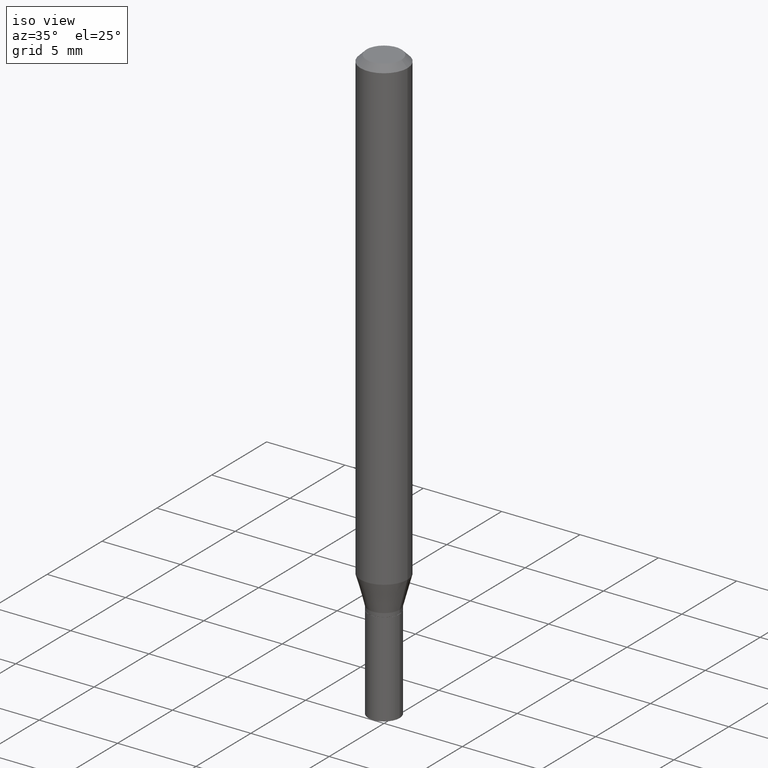
[diagram: clean part render]
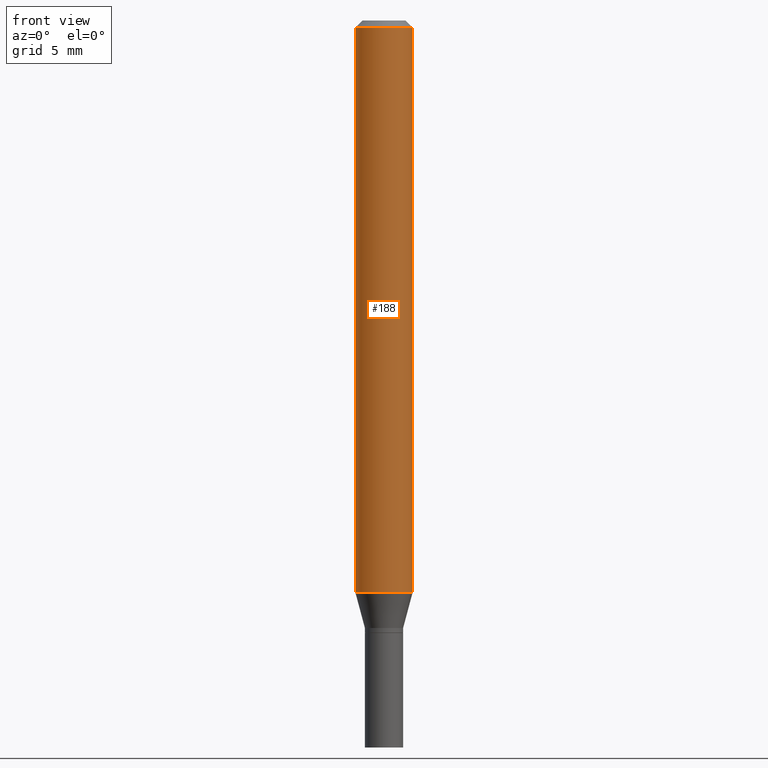
[diagram: tour spotlight — one face highlighted and labeled with its STEP entity id]
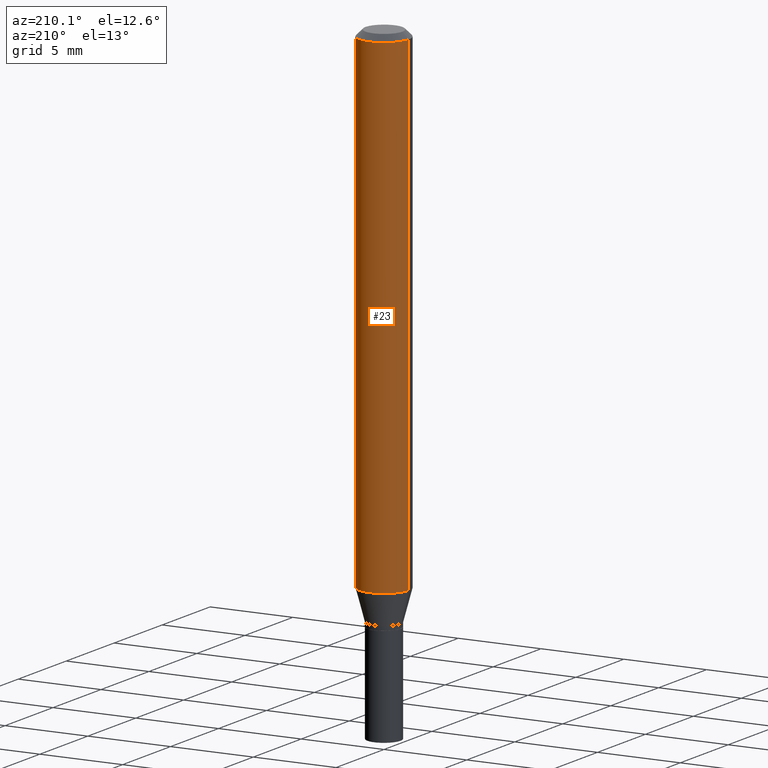
[diagram: tour spotlight — one face highlighted and labeled with its STEP entity id]
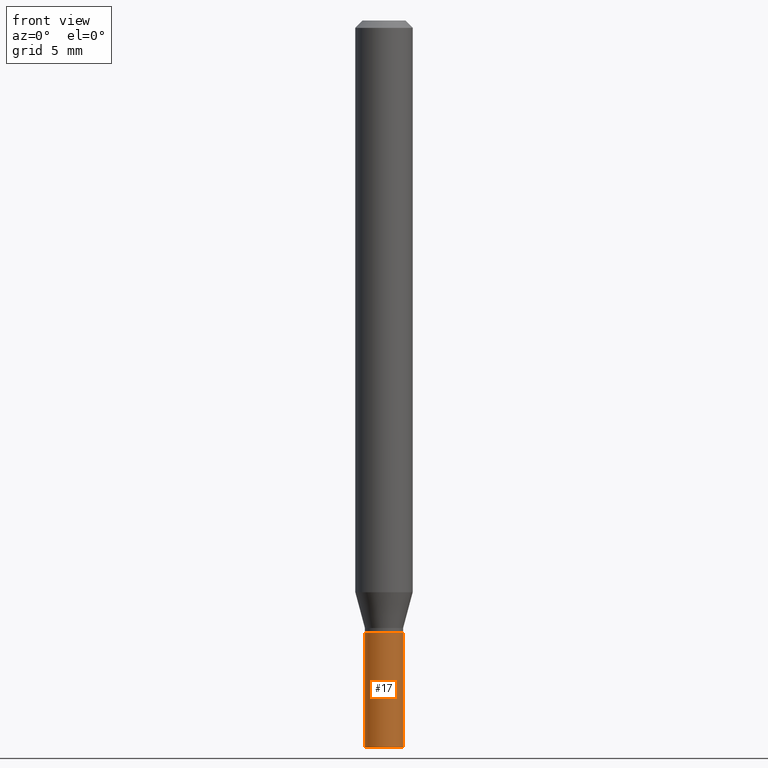
[diagram: tour spotlight — one face highlighted and labeled with its STEP entity id]
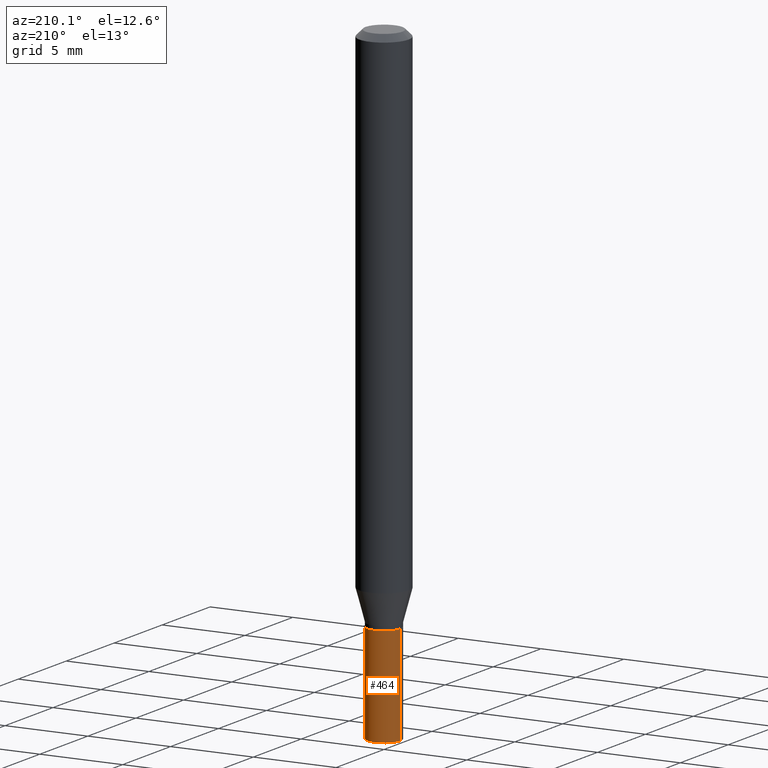
[diagram: tour spotlight — one face highlighted and labeled with its STEP entity id]
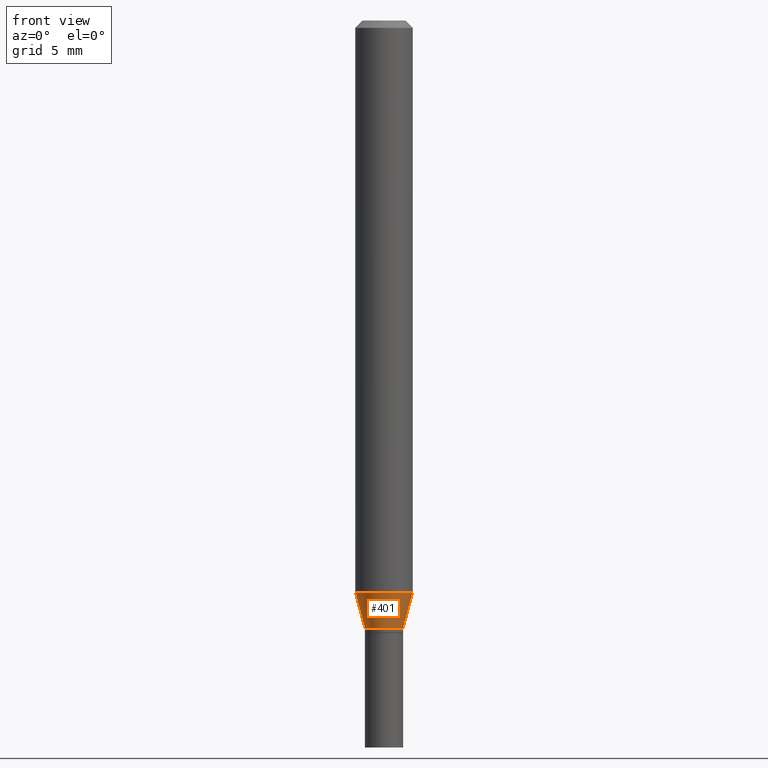
[diagram: tour spotlight — one face highlighted and labeled with its STEP entity id]
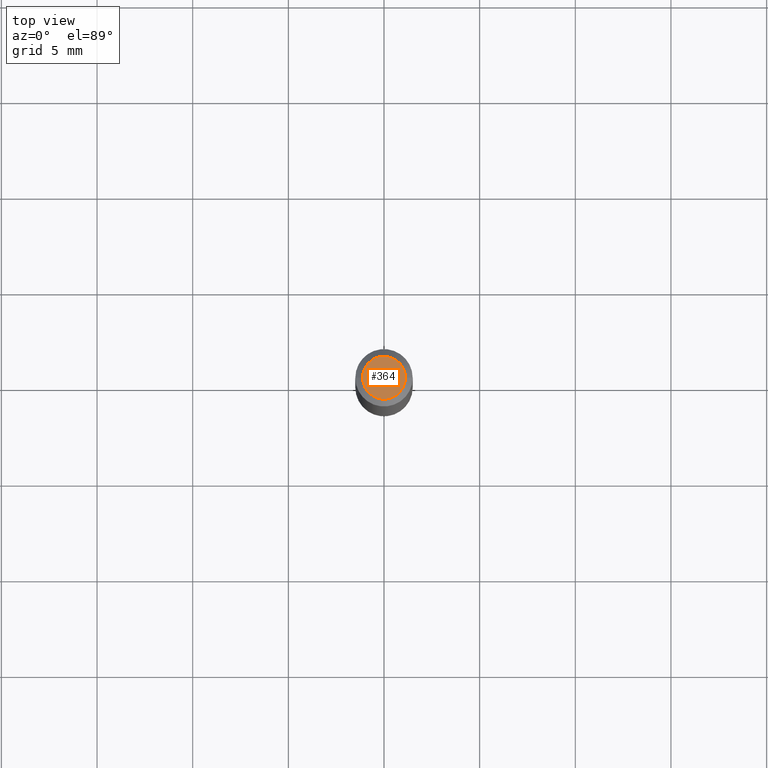
[diagram: tour spotlight — one face highlighted and labeled with its STEP entity id]
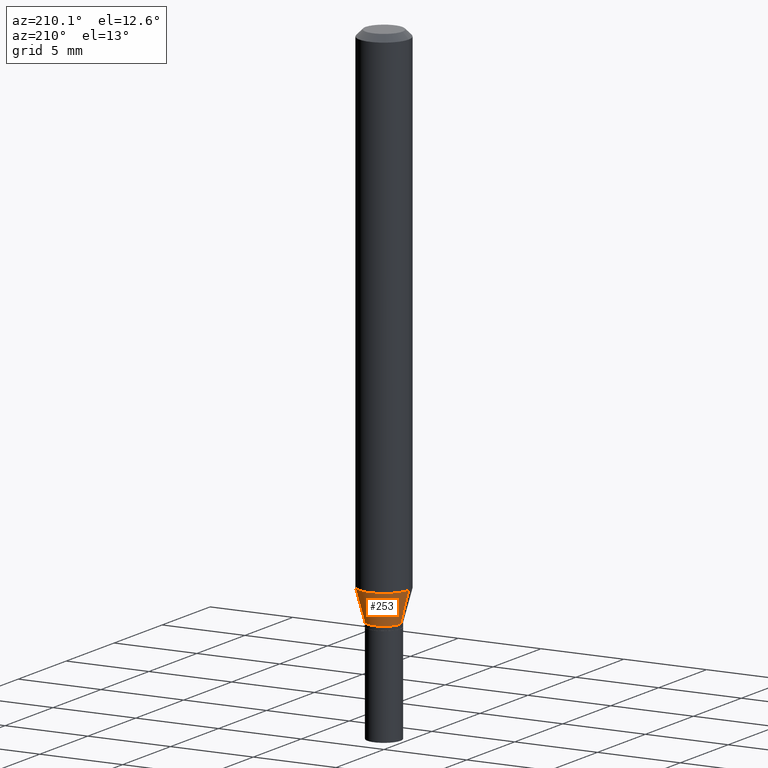
[diagram: tour spotlight — one face highlighted and labeled with its STEP entity id]
A machine part: a face-by-face anatomy tour. The part has 16 B-rep faces; the first image is the clean iso view, then the 7 largest visible faces are spotlighted one at a time (largest first), each with its STEP entity span.

Face 1 — front view, entity #188. In plain terms, the highlighted cylindrical surface (edge-blend (fillet) strip) has radius 1.4999 mm, axis along (-0, 0, 1).
Definition (entity closure, byte-faithful):
#5 = VERTEX_POINT ( 'NONE', #370 ) ;
#10 = CARTESIAN_POINT ( 'NONE',  ( 3.668203209277705088E-31, -5.237222008264718399E-17, -0.01499999999999999944 ) ) ;
#37 = AXIS2_PLACEMENT_3D ( 'NONE', #10, #251, #433 ) ;
#46 = AXIS2_PLACEMENT_3D ( 'NONE', #96, #90, #172 ) ;
#56 = ORIENTED_EDGE ( 'NONE', *, *, #171, .T. ) ;
#58 = CARTESIAN_POINT ( 'NONE',  ( 0.05904999999999999832, -4.647161662000212105E-16, -0.01499999999999999944 ) ) ;
#79 = CIRCLE ( 'NONE', #305, 0.05904999999999999832 ) ;
#90 = DIRECTION ( 'NONE',  ( -2.445468806185136597E-29, 3.491481338843145583E-15, 1.000000000000000000 ) ) ;
#96 = CARTESIAN_POINT ( 'NONE',  ( 0.000000000000000000, 0.000000000000000000, 0.000000000000000000 ) ) ;
#114 = VERTEX_POINT ( 'NONE', #58 ) ;
#130 = VERTEX_POINT ( 'NONE', #411 ) ;
#133 = FACE_OUTER_BOUND ( 'NONE', #278, .T. ) ;
#137 = CARTESIAN_POINT ( 'NONE',  ( 0.05904999999999999832, -4.123439461173740327E-16, 2.879382386107500220E-30 ) ) ;
#146 = DIRECTION ( 'NONE',  ( 1.000000000000000000, -6.982962677686265133E-15, 0.000000000000000000 ) ) ;
#171 = EDGE_CURVE ( 'NONE', #130, #114, #203, .T. ) ;
#172 = DIRECTION ( 'NONE',  ( 1.000000000000000000, -6.982962677686266711E-15, 4.876176775795936353E-29 ) ) ;
#180 = LINE ( 'NONE', #214, #264 ) ;
#182 = ORIENTED_EDGE ( 'NONE', *, *, #431, .T. ) ;
#188 = ADVANCED_FACE ( 'NONE', ( #133 ), #244, .T. ) ;
#193 = ORIENTED_EDGE ( 'NONE', *, *, #441, .F. ) ;
#203 = LINE ( 'NONE', #137, #361 ) ;
#214 = CARTESIAN_POINT ( 'NONE',  ( -0.05904999999999999832, 4.195754854663391478E-16, -2.904631170795521892E-30 ) ) ;
#223 = CARTESIAN_POINT ( 'NONE',  ( 2.877286262101783614E-29, -4.108002222408059533E-15, -1.176578599090891686 ) ) ;
#232 = CIRCLE ( 'NONE', #37, 0.05904999999999999832 ) ;
#244 = CYLINDRICAL_SURFACE ( 'NONE', #46, 0.05904999999999999832 ) ;
#251 = DIRECTION ( 'NONE',  ( -2.445468806185136597E-29, 3.491481338843145583E-15, 1.000000000000000000 ) ) ;
#264 = VECTOR ( 'NONE', #399, 39.37007874015748143 ) ;
#273 = DIRECTION ( 'NONE',  ( -2.445468806185136877E-29, 3.491481338843145188E-15, 1.000000000000000000 ) ) ;
#278 = EDGE_LOOP ( 'NONE', ( #193, #182, #56, #293 ) ) ;
#284 = VERTEX_POINT ( 'NONE', #442 ) ;
#293 = ORIENTED_EDGE ( 'NONE', *, *, #391, .F. ) ;
#305 = AXIS2_PLACEMENT_3D ( 'NONE', #223, #360, #146 ) ;
#360 = DIRECTION ( 'NONE',  ( -2.445468806185136597E-29, 3.491481338843145583E-15, 1.000000000000000000 ) ) ;
#361 = VECTOR ( 'NONE', #273, 39.37007874015748143 ) ;
#370 = CARTESIAN_POINT ( 'NONE',  ( -0.05904999999999999832, -1.660611735779014010E-15, -0.01499999999999999944 ) ) ;
#391 = EDGE_CURVE ( 'NONE', #5, #114, #232, .T. ) ;
#399 = DIRECTION ( 'NONE',  ( -2.445468806185136877E-29, 3.491481338843145188E-15, 1.000000000000000000 ) ) ;
#411 = CARTESIAN_POINT ( 'NONE',  ( 0.05904999999999999832, -4.520346168525434453E-15, -1.176578599090891686 ) ) ;
#431 = EDGE_CURVE ( 'NONE', #284, #130, #79, .T. ) ;
#433 = DIRECTION ( 'NONE',  ( 1.000000000000000000, -6.982962677686266711E-15, 0.000000000000000000 ) ) ;
#441 = EDGE_CURVE ( 'NONE', #284, #5, #180, .T. ) ;
#442 = CARTESIAN_POINT ( 'NONE',  ( -0.05904999999999999832, -3.688426736941720829E-15, -1.176578599090891686 ) ) ;

Face 2 — auxiliary view, entity #23. In plain terms, the highlighted cylindrical surface (edge-blend (fillet) strip) has radius 1.4999 mm, axis along (-0, 0, 1).
Definition (entity closure, byte-faithful):
#5 = VERTEX_POINT ( 'NONE', #370 ) ;
#16 = CARTESIAN_POINT ( 'NONE',  ( 0.000000000000000000, 0.000000000000000000, 0.000000000000000000 ) ) ;
#23 = ADVANCED_FACE ( 'NONE', ( #302 ), #84, .T. ) ;
#58 = CARTESIAN_POINT ( 'NONE',  ( 0.05904999999999999832, -4.647161662000212105E-16, -0.01499999999999999944 ) ) ;
#82 = ORIENTED_EDGE ( 'NONE', *, *, #441, .T. ) ;
#84 = CYLINDRICAL_SURFACE ( 'NONE', #205, 0.05904999999999999832 ) ;
#93 = EDGE_CURVE ( 'NONE', #114, #5, #296, .T. ) ;
#114 = VERTEX_POINT ( 'NONE', #58 ) ;
#119 = DIRECTION ( 'NONE',  ( 1.000000000000000000, -6.982962677686266711E-15, 4.876176775795936353E-29 ) ) ;
#123 = DIRECTION ( 'NONE',  ( 1.000000000000000000, -6.982962677686266711E-15, 0.000000000000000000 ) ) ;
#130 = VERTEX_POINT ( 'NONE', #411 ) ;
#135 = DIRECTION ( 'NONE',  ( 1.000000000000000000, -6.982962677686265133E-15, 0.000000000000000000 ) ) ;
#137 = CARTESIAN_POINT ( 'NONE',  ( 0.05904999999999999832, -4.123439461173740327E-16, 2.879382386107500220E-30 ) ) ;
#155 = DIRECTION ( 'NONE',  ( -2.445468806185136597E-29, 3.491481338843145583E-15, 1.000000000000000000 ) ) ;
#171 = EDGE_CURVE ( 'NONE', #130, #114, #203, .T. ) ;
#180 = LINE ( 'NONE', #214, #264 ) ;
#203 = LINE ( 'NONE', #137, #361 ) ;
#204 = EDGE_LOOP ( 'NONE', ( #229, #82, #381, #328 ) ) ;
#205 = AXIS2_PLACEMENT_3D ( 'NONE', #16, #155, #119 ) ;
#214 = CARTESIAN_POINT ( 'NONE',  ( -0.05904999999999999832, 4.195754854663391478E-16, -2.904631170795521892E-30 ) ) ;
#229 = ORIENTED_EDGE ( 'NONE', *, *, #267, .T. ) ;
#264 = VECTOR ( 'NONE', #399, 39.37007874015748143 ) ;
#267 = EDGE_CURVE ( 'NONE', #130, #284, #325, .T. ) ;
#273 = DIRECTION ( 'NONE',  ( -2.445468806185136877E-29, 3.491481338843145188E-15, 1.000000000000000000 ) ) ;
#284 = VERTEX_POINT ( 'NONE', #442 ) ;
#296 = CIRCLE ( 'NONE', #437, 0.05904999999999999832 ) ;
#302 = FACE_OUTER_BOUND ( 'NONE', #204, .T. ) ;
#321 = CARTESIAN_POINT ( 'NONE',  ( 2.877286262101783614E-29, -4.108002222408059533E-15, -1.176578599090891686 ) ) ;
#325 = CIRCLE ( 'NONE', #350, 0.05904999999999999832 ) ;
#328 = ORIENTED_EDGE ( 'NONE', *, *, #171, .F. ) ;
#350 = AXIS2_PLACEMENT_3D ( 'NONE', #321, #465, #135 ) ;
#361 = VECTOR ( 'NONE', #273, 39.37007874015748143 ) ;
#370 = CARTESIAN_POINT ( 'NONE',  ( -0.05904999999999999832, -1.660611735779014010E-15, -0.01499999999999999944 ) ) ;
#376 = CARTESIAN_POINT ( 'NONE',  ( 3.668203209277705088E-31, -5.237222008264718399E-17, -0.01499999999999999944 ) ) ;
#381 = ORIENTED_EDGE ( 'NONE', *, *, #93, .F. ) ;
#399 = DIRECTION ( 'NONE',  ( -2.445468806185136877E-29, 3.491481338843145188E-15, 1.000000000000000000 ) ) ;
#411 = CARTESIAN_POINT ( 'NONE',  ( 0.05904999999999999832, -4.520346168525434453E-15, -1.176578599090891686 ) ) ;
#437 = AXIS2_PLACEMENT_3D ( 'NONE', #376, #449, #123 ) ;
#441 = EDGE_CURVE ( 'NONE', #284, #5, #180, .T. ) ;
#442 = CARTESIAN_POINT ( 'NONE',  ( -0.05904999999999999832, -3.688426736941720829E-15, -1.176578599090891686 ) ) ;
#449 = DIRECTION ( 'NONE',  ( -2.445468806185136597E-29, 3.491481338843145583E-15, 1.000000000000000000 ) ) ;
#465 = DIRECTION ( 'NONE',  ( -2.445468806185136597E-29, 3.491481338843145583E-15, 1.000000000000000000 ) ) ;

Face 3 — front view, entity #17. In plain terms, the highlighted cylindrical surface (edge-blend (fillet) strip) has radius 0.9995 mm, axis along (-0, 0, 1).
Definition (entity closure, byte-faithful):
#1 = CARTESIAN_POINT ( 'NONE',  ( 0.03935000000000000303, -5.498384812410184577E-15, -1.496099999999999985 ) ) ;
#6 = VECTOR ( 'NONE', #249, 39.37007874015748143 ) ;
#17 = ADVANCED_FACE ( 'NONE', ( #307 ), #339, .T. ) ;
#18 = CARTESIAN_POINT ( 'NONE',  ( -0.03935000000000000303, -4.531662718404255344E-15, -1.259899999999999798 ) ) ;
#31 = EDGE_LOOP ( 'NONE', ( #394, #329, #110, #435 ) ) ;
#34 = CARTESIAN_POINT ( 'NONE',  ( 3.081046148912652946E-29, -4.398917338808479031E-15, -1.259899999999999798 ) ) ;
#44 = DIRECTION ( 'NONE',  ( 1.000000000000000000, -6.982962677686266711E-15, 4.876176775795936353E-29 ) ) ;
#48 = VERTEX_POINT ( 'NONE', #18 ) ;
#64 = DIRECTION ( 'NONE',  ( 1.000000000000000000, -6.982962677686269077E-15, 0.000000000000000000 ) ) ;
#67 = DIRECTION ( 'NONE',  ( -2.445468806185136597E-29, 3.491481338843145583E-15, 1.000000000000000000 ) ) ;
#75 = AXIS2_PLACEMENT_3D ( 'NONE', #127, #463, #64 ) ;
#110 = ORIENTED_EDGE ( 'NONE', *, *, #201, .T. ) ;
#121 = AXIS2_PLACEMENT_3D ( 'NONE', #222, #150, #44 ) ;
#127 = CARTESIAN_POINT ( 'NONE',  ( 3.658665880933582389E-29, -5.223605231043229660E-15, -1.496099999999999985 ) ) ;
#144 = CARTESIAN_POINT ( 'NONE',  ( 0.03935000000000000303, -4.673696920175433159E-15, -1.259899999999999798 ) ) ;
#150 = DIRECTION ( 'NONE',  ( -2.445468806185136597E-29, 3.491481338843145583E-15, 1.000000000000000000 ) ) ;
#162 = VERTEX_POINT ( 'NONE', #1 ) ;
#169 = EDGE_CURVE ( 'NONE', #48, #330, #247, .T. ) ;
#181 = EDGE_CURVE ( 'NONE', #348, #162, #412, .T. ) ;
#200 = DIRECTION ( 'NONE',  ( 1.000000000000000000, -6.982962677686269077E-15, 0.000000000000000000 ) ) ;
#201 = EDGE_CURVE ( 'NONE', #162, #330, #417, .T. ) ;
#217 = CARTESIAN_POINT ( 'NONE',  ( -0.03935000000000000303, -4.531662718404255344E-15, -1.496099999999999985 ) ) ;
#222 = CARTESIAN_POINT ( 'NONE',  ( 0.000000000000000000, 0.000000000000000000, 0.000000000000000000 ) ) ;
#247 = CIRCLE ( 'NONE', #354, 0.03935000000000000303 ) ;
#249 = DIRECTION ( 'NONE',  ( -2.445468806185136877E-29, 3.491481338843145188E-15, 1.000000000000000000 ) ) ;
#259 = LINE ( 'NONE', #294, #6 ) ;
#275 = VECTOR ( 'NONE', #457, 39.37007874015748143 ) ;
#294 = CARTESIAN_POINT ( 'NONE',  ( -0.03935000000000000303, 2.795985665215994447E-16, -1.935600958015305291E-30 ) ) ;
#307 = FACE_OUTER_BOUND ( 'NONE', #31, .T. ) ;
#329 = ORIENTED_EDGE ( 'NONE', *, *, #181, .T. ) ;
#330 = VERTEX_POINT ( 'NONE', #144 ) ;
#339 = CYLINDRICAL_SURFACE ( 'NONE', #121, 0.03935000000000000303 ) ;
#348 = VERTEX_POINT ( 'NONE', #217 ) ;
#353 = CARTESIAN_POINT ( 'NONE',  ( 0.03935000000000000303, -2.747795813669546211E-16, 1.918775561275701074E-30 ) ) ;
#354 = AXIS2_PLACEMENT_3D ( 'NONE', #34, #67, #200 ) ;
#394 = ORIENTED_EDGE ( 'NONE', *, *, #408, .F. ) ;
#408 = EDGE_CURVE ( 'NONE', #348, #48, #259, .T. ) ;
#412 = CIRCLE ( 'NONE', #75, 0.03935000000000000303 ) ;
#417 = LINE ( 'NONE', #353, #275 ) ;
#435 = ORIENTED_EDGE ( 'NONE', *, *, #169, .F. ) ;
#457 = DIRECTION ( 'NONE',  ( -2.445468806185136877E-29, 3.491481338843145188E-15, 1.000000000000000000 ) ) ;
#463 = DIRECTION ( 'NONE',  ( -2.445468806185136597E-29, 3.491481338843145583E-15, 1.000000000000000000 ) ) ;

Face 4 — auxiliary view, entity #464. In plain terms, the highlighted cylindrical surface (edge-blend (fillet) strip) has radius 0.9995 mm, axis along (-0, 0, 1).
Definition (entity closure, byte-faithful):
#1 = CARTESIAN_POINT ( 'NONE',  ( 0.03935000000000000303, -5.498384812410184577E-15, -1.496099999999999985 ) ) ;
#6 = VECTOR ( 'NONE', #249, 39.37007874015748143 ) ;
#11 = ORIENTED_EDGE ( 'NONE', *, *, #408, .T. ) ;
#18 = CARTESIAN_POINT ( 'NONE',  ( -0.03935000000000000303, -4.531662718404255344E-15, -1.259899999999999798 ) ) ;
#43 = EDGE_CURVE ( 'NONE', #330, #48, #178, .T. ) ;
#48 = VERTEX_POINT ( 'NONE', #18 ) ;
#50 = DIRECTION ( 'NONE',  ( -2.445468806185136597E-29, 3.491481338843145583E-15, 1.000000000000000000 ) ) ;
#63 = EDGE_LOOP ( 'NONE', ( #239, #11, #429, #156 ) ) ;
#97 = AXIS2_PLACEMENT_3D ( 'NONE', #268, #185, #405 ) ;
#102 = EDGE_CURVE ( 'NONE', #162, #348, #163, .T. ) ;
#118 = CYLINDRICAL_SURFACE ( 'NONE', #413, 0.03935000000000000303 ) ;
#144 = CARTESIAN_POINT ( 'NONE',  ( 0.03935000000000000303, -4.673696920175433159E-15, -1.259899999999999798 ) ) ;
#156 = ORIENTED_EDGE ( 'NONE', *, *, #201, .F. ) ;
#162 = VERTEX_POINT ( 'NONE', #1 ) ;
#163 = CIRCLE ( 'NONE', #97, 0.03935000000000000303 ) ;
#178 = CIRCLE ( 'NONE', #369, 0.03935000000000000303 ) ;
#185 = DIRECTION ( 'NONE',  ( -2.445468806185136597E-29, 3.491481338843145583E-15, 1.000000000000000000 ) ) ;
#198 = CARTESIAN_POINT ( 'NONE',  ( 0.000000000000000000, 0.000000000000000000, 0.000000000000000000 ) ) ;
#201 = EDGE_CURVE ( 'NONE', #162, #330, #417, .T. ) ;
#217 = CARTESIAN_POINT ( 'NONE',  ( -0.03935000000000000303, -4.531662718404255344E-15, -1.496099999999999985 ) ) ;
#225 = DIRECTION ( 'NONE',  ( 1.000000000000000000, -6.982962677686266711E-15, 4.876176775795936353E-29 ) ) ;
#239 = ORIENTED_EDGE ( 'NONE', *, *, #102, .T. ) ;
#249 = DIRECTION ( 'NONE',  ( -2.445468806185136877E-29, 3.491481338843145188E-15, 1.000000000000000000 ) ) ;
#259 = LINE ( 'NONE', #294, #6 ) ;
#268 = CARTESIAN_POINT ( 'NONE',  ( 3.658665880933582389E-29, -5.223605231043229660E-15, -1.496099999999999985 ) ) ;
#275 = VECTOR ( 'NONE', #457, 39.37007874015748143 ) ;
#294 = CARTESIAN_POINT ( 'NONE',  ( -0.03935000000000000303, 2.795985665215994447E-16, -1.935600958015305291E-30 ) ) ;
#330 = VERTEX_POINT ( 'NONE', #144 ) ;
#337 = DIRECTION ( 'NONE',  ( 1.000000000000000000, -6.982962677686269077E-15, 0.000000000000000000 ) ) ;
#348 = VERTEX_POINT ( 'NONE', #217 ) ;
#353 = CARTESIAN_POINT ( 'NONE',  ( 0.03935000000000000303, -2.747795813669546211E-16, 1.918775561275701074E-30 ) ) ;
#369 = AXIS2_PLACEMENT_3D ( 'NONE', #407, #50, #337 ) ;
#372 = DIRECTION ( 'NONE',  ( -2.445468806185136597E-29, 3.491481338843145583E-15, 1.000000000000000000 ) ) ;
#380 = FACE_OUTER_BOUND ( 'NONE', #63, .T. ) ;
#405 = DIRECTION ( 'NONE',  ( 1.000000000000000000, -6.982962677686269077E-15, 0.000000000000000000 ) ) ;
#407 = CARTESIAN_POINT ( 'NONE',  ( 3.081046148912652946E-29, -4.398917338808479031E-15, -1.259899999999999798 ) ) ;
#408 = EDGE_CURVE ( 'NONE', #348, #48, #259, .T. ) ;
#413 = AXIS2_PLACEMENT_3D ( 'NONE', #198, #372, #225 ) ;
#417 = LINE ( 'NONE', #353, #275 ) ;
#429 = ORIENTED_EDGE ( 'NONE', *, *, #43, .F. ) ;
#457 = DIRECTION ( 'NONE',  ( -2.445468806185136877E-29, 3.491481338843145188E-15, 1.000000000000000000 ) ) ;
#464 = ADVANCED_FACE ( 'NONE', ( #380 ), #118, .T. ) ;

Face 5 — front view, entity #401. In plain terms, the highlighted conical surface has half-angle 15 deg.
Definition (entity closure, byte-faithful):
#3 = CIRCLE ( 'NONE', #448, 0.03934999999999963527 ) ;
#7 = AXIS2_PLACEMENT_3D ( 'NONE', #216, #183, #440 ) ;
#9 = ORIENTED_EDGE ( 'NONE', *, *, #357, .T. ) ;
#20 = EDGE_LOOP ( 'NONE', ( #153, #9, #322, #292 ) ) ;
#29 = VECTOR ( 'NONE', #32, 39.37007874015748854 ) ;
#32 = DIRECTION ( 'NONE',  ( 0.2588190451025211836, 1.565188264969622559E-15, 0.9659258262890679791 ) ) ;
#54 = DIRECTION ( 'NONE',  ( -0.2588190451025211836, 5.211531920934547886E-15, 0.9659258262890679791 ) ) ;
#79 = CIRCLE ( 'NONE', #305, 0.05904999999999999832 ) ;
#94 = LINE ( 'NONE', #420, #29 ) ;
#95 = CARTESIAN_POINT ( 'NONE',  ( -0.03934999999999963527, -3.886764496053970286E-15, -1.250099999999999767 ) ) ;
#104 = EDGE_CURVE ( 'NONE', #309, #284, #228, .T. ) ;
#107 = CARTESIAN_POINT ( 'NONE',  ( 0.03934999999999963527, -4.639480403054768534E-15, -1.250099999999999767 ) ) ;
#130 = VERTEX_POINT ( 'NONE', #411 ) ;
#140 = VECTOR ( 'NONE', #54, 39.37007874015748854 ) ;
#146 = DIRECTION ( 'NONE',  ( 1.000000000000000000, -6.982962677686265133E-15, 0.000000000000000000 ) ) ;
#153 = ORIENTED_EDGE ( 'NONE', *, *, #104, .F. ) ;
#183 = DIRECTION ( 'NONE',  ( -2.445468806185136597E-29, 3.491481338843145583E-15, 1.000000000000000000 ) ) ;
#206 = CONICAL_SURFACE ( 'NONE', #7, 0.03934999999999963527, 0.2617993877991499074 ) ;
#216 = CARTESIAN_POINT ( 'NONE',  ( 3.057080554612038970E-29, -4.364700821687815983E-15, -1.250099999999999767 ) ) ;
#220 = FACE_OUTER_BOUND ( 'NONE', #20, .T. ) ;
#223 = CARTESIAN_POINT ( 'NONE',  ( 2.877286262101783614E-29, -4.108002222408059533E-15, -1.176578599090891686 ) ) ;
#228 = LINE ( 'NONE', #297, #140 ) ;
#240 = CARTESIAN_POINT ( 'NONE',  ( 3.057080554612038970E-29, -4.364700821687815983E-15, -1.250099999999999767 ) ) ;
#260 = EDGE_CURVE ( 'NONE', #396, #130, #94, .T. ) ;
#284 = VERTEX_POINT ( 'NONE', #442 ) ;
#292 = ORIENTED_EDGE ( 'NONE', *, *, #431, .F. ) ;
#297 = CARTESIAN_POINT ( 'NONE',  ( -0.03934999999999963527, -4.085102255166218954E-15, -1.250099999999999767 ) ) ;
#305 = AXIS2_PLACEMENT_3D ( 'NONE', #223, #360, #146 ) ;
#309 = VERTEX_POINT ( 'NONE', #95 ) ;
#322 = ORIENTED_EDGE ( 'NONE', *, *, #260, .T. ) ;
#331 = DIRECTION ( 'NONE',  ( -2.445468806185136597E-29, 3.491481338843145583E-15, 1.000000000000000000 ) ) ;
#357 = EDGE_CURVE ( 'NONE', #309, #396, #3, .T. ) ;
#360 = DIRECTION ( 'NONE',  ( -2.445468806185136597E-29, 3.491481338843145583E-15, 1.000000000000000000 ) ) ;
#396 = VERTEX_POINT ( 'NONE', #107 ) ;
#401 = ADVANCED_FACE ( 'NONE', ( #220 ), #206, .T. ) ;
#411 = CARTESIAN_POINT ( 'NONE',  ( 0.05904999999999999832, -4.520346168525434453E-15, -1.176578599090891686 ) ) ;
#420 = CARTESIAN_POINT ( 'NONE',  ( 0.03934999999999963527, -4.639480403054768534E-15, -1.250099999999999767 ) ) ;
#430 = DIRECTION ( 'NONE',  ( 1.000000000000000000, -6.982962677686273021E-15, 0.000000000000000000 ) ) ;
#431 = EDGE_CURVE ( 'NONE', #284, #130, #79, .T. ) ;
#440 = DIRECTION ( 'NONE',  ( 1.000000000000000000, -6.982962677686273021E-15, 0.000000000000000000 ) ) ;
#442 = CARTESIAN_POINT ( 'NONE',  ( -0.05904999999999999832, -3.688426736941720829E-15, -1.176578599090891686 ) ) ;
#448 = AXIS2_PLACEMENT_3D ( 'NONE', #240, #331, #430 ) ;

Face 6 — top view, entity #364. In plain terms, the highlighted planar face has unit normal (0, -0, -1).
Definition (entity closure, byte-faithful):
#14 = DIRECTION ( 'NONE',  ( -1.000000000000000000, 6.982962677686265922E-15, -4.876176775795935793E-29 ) ) ;
#45 = PLANE ( 'NONE',  #141 ) ;
#68 = CIRCLE ( 'NONE', #333, 0.04404999999999999888 ) ;
#77 = DIRECTION ( 'NONE',  ( 1.000000000000000000, -6.982962677686265922E-15, 4.888540261209747396E-29 ) ) ;
#101 = DIRECTION ( 'NONE',  ( 1.000000000000000000, -6.982962677686265922E-15, 4.888540261209747396E-29 ) ) ;
#117 = DIRECTION ( 'NONE',  ( -2.445468806185136597E-29, 3.491481338843145583E-15, 1.000000000000000000 ) ) ;
#132 = DIRECTION ( 'NONE',  ( -2.445468806185136597E-29, 3.491481338843145583E-15, 1.000000000000000000 ) ) ;
#141 = AXIS2_PLACEMENT_3D ( 'NONE', #395, #365, #14 ) ;
#213 = EDGE_CURVE ( 'NONE', #327, #236, #68, .T. ) ;
#236 = VERTEX_POINT ( 'NONE', #455 ) ;
#258 = AXIS2_PLACEMENT_3D ( 'NONE', #392, #117, #77 ) ;
#262 = CARTESIAN_POINT ( 'NONE',  ( -0.04404999999999999888, 3.337856159934032167E-16, -1.131095217488012768E-16 ) ) ;
#301 = FACE_OUTER_BOUND ( 'NONE', #388, .T. ) ;
#313 = ORIENTED_EDGE ( 'NONE', *, *, #213, .T. ) ;
#327 = VERTEX_POINT ( 'NONE', #262 ) ;
#333 = AXIS2_PLACEMENT_3D ( 'NONE', #425, #132, #101 ) ;
#349 = ORIENTED_EDGE ( 'NONE', *, *, #416, .T. ) ;
#364 = ADVANCED_FACE ( 'NONE', ( #301 ), #45, .F. ) ;
#365 = DIRECTION ( 'NONE',  ( 2.438088387897960049E-29, -3.491481338843145188E-15, -1.000000000000000000 ) ) ;
#388 = EDGE_LOOP ( 'NONE', ( #313, #349 ) ) ;
#392 = CARTESIAN_POINT ( 'NONE',  ( 2.766058071192073201E-45, -3.949197844314047599E-31, -1.131095217487990335E-16 ) ) ;
#395 = CARTESIAN_POINT ( 'NONE',  ( 3.075995059520799729E-16, 0.04404999999999999888, -2.103545138504400702E-16 ) ) ;
#416 = EDGE_CURVE ( 'NONE', #236, #327, #423, .T. ) ;
#423 = CIRCLE ( 'NONE', #258, 0.04404999999999999888 ) ;
#425 = CARTESIAN_POINT ( 'NONE',  ( 2.766058071192073201E-45, -3.949197844314047599E-31, -1.131095217487990335E-16 ) ) ;
#455 = CARTESIAN_POINT ( 'NONE',  ( 0.04404999999999999888, -3.798447818264462051E-16, -1.131095217487966422E-16 ) ) ;

Face 7 — auxiliary view, entity #253. In plain terms, the highlighted conical surface has half-angle 15 deg.
Definition (entity closure, byte-faithful):
#24 = FACE_OUTER_BOUND ( 'NONE', #257, .T. ) ;
#29 = VECTOR ( 'NONE', #32, 39.37007874015748854 ) ;
#32 = DIRECTION ( 'NONE',  ( 0.2588190451025211836, 1.565188264969622559E-15, 0.9659258262890679791 ) ) ;
#35 = EDGE_CURVE ( 'NONE', #396, #309, #231, .T. ) ;
#54 = DIRECTION ( 'NONE',  ( -0.2588190451025211836, 5.211531920934547886E-15, 0.9659258262890679791 ) ) ;
#65 = CONICAL_SURFACE ( 'NONE', #115, 0.03934999999999963527, 0.2617993877991499074 ) ;
#86 = ORIENTED_EDGE ( 'NONE', *, *, #104, .T. ) ;
#94 = LINE ( 'NONE', #420, #29 ) ;
#95 = CARTESIAN_POINT ( 'NONE',  ( -0.03934999999999963527, -3.886764496053970286E-15, -1.250099999999999767 ) ) ;
#104 = EDGE_CURVE ( 'NONE', #309, #284, #228, .T. ) ;
#107 = CARTESIAN_POINT ( 'NONE',  ( 0.03934999999999963527, -4.639480403054768534E-15, -1.250099999999999767 ) ) ;
#115 = AXIS2_PLACEMENT_3D ( 'NONE', #158, #238, #415 ) ;
#126 = ORIENTED_EDGE ( 'NONE', *, *, #260, .F. ) ;
#130 = VERTEX_POINT ( 'NONE', #411 ) ;
#135 = DIRECTION ( 'NONE',  ( 1.000000000000000000, -6.982962677686265133E-15, 0.000000000000000000 ) ) ;
#140 = VECTOR ( 'NONE', #54, 39.37007874015748854 ) ;
#158 = CARTESIAN_POINT ( 'NONE',  ( 3.057080554612038970E-29, -4.364700821687815983E-15, -1.250099999999999767 ) ) ;
#221 = ORIENTED_EDGE ( 'NONE', *, *, #35, .T. ) ;
#226 = CARTESIAN_POINT ( 'NONE',  ( 3.057080554612038970E-29, -4.364700821687815983E-15, -1.250099999999999767 ) ) ;
#228 = LINE ( 'NONE', #297, #140 ) ;
#231 = CIRCLE ( 'NONE', #386, 0.03934999999999963527 ) ;
#238 = DIRECTION ( 'NONE',  ( -2.445468806185136597E-29, 3.491481338843145583E-15, 1.000000000000000000 ) ) ;
#253 = ADVANCED_FACE ( 'NONE', ( #24 ), #65, .T. ) ;
#257 = EDGE_LOOP ( 'NONE', ( #221, #86, #398, #126 ) ) ;
#260 = EDGE_CURVE ( 'NONE', #396, #130, #94, .T. ) ;
#267 = EDGE_CURVE ( 'NONE', #130, #284, #325, .T. ) ;
#284 = VERTEX_POINT ( 'NONE', #442 ) ;
#297 = CARTESIAN_POINT ( 'NONE',  ( -0.03934999999999963527, -4.085102255166218954E-15, -1.250099999999999767 ) ) ;
#309 = VERTEX_POINT ( 'NONE', #95 ) ;
#321 = CARTESIAN_POINT ( 'NONE',  ( 2.877286262101783614E-29, -4.108002222408059533E-15, -1.176578599090891686 ) ) ;
#325 = CIRCLE ( 'NONE', #350, 0.05904999999999999832 ) ;
#350 = AXIS2_PLACEMENT_3D ( 'NONE', #321, #465, #135 ) ;
#373 = DIRECTION ( 'NONE',  ( -2.445468806185136597E-29, 3.491481338843145583E-15, 1.000000000000000000 ) ) ;
#386 = AXIS2_PLACEMENT_3D ( 'NONE', #226, #373, #451 ) ;
#396 = VERTEX_POINT ( 'NONE', #107 ) ;
#398 = ORIENTED_EDGE ( 'NONE', *, *, #267, .F. ) ;
#411 = CARTESIAN_POINT ( 'NONE',  ( 0.05904999999999999832, -4.520346168525434453E-15, -1.176578599090891686 ) ) ;
#415 = DIRECTION ( 'NONE',  ( 1.000000000000000000, -6.982962677686273021E-15, 0.000000000000000000 ) ) ;
#420 = CARTESIAN_POINT ( 'NONE',  ( 0.03934999999999963527, -4.639480403054768534E-15, -1.250099999999999767 ) ) ;
#442 = CARTESIAN_POINT ( 'NONE',  ( -0.05904999999999999832, -3.688426736941720829E-15, -1.176578599090891686 ) ) ;
#451 = DIRECTION ( 'NONE',  ( 1.000000000000000000, -6.982962677686273021E-15, 0.000000000000000000 ) ) ;
#465 = DIRECTION ( 'NONE',  ( -2.445468806185136597E-29, 3.491481338843145583E-15, 1.000000000000000000 ) ) ;